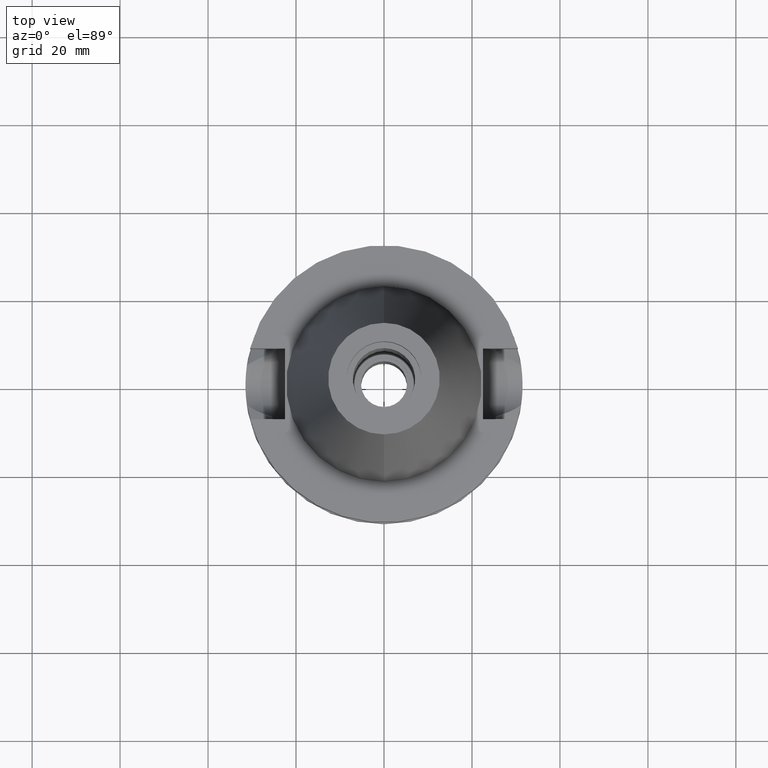
[diagram: clean part render]
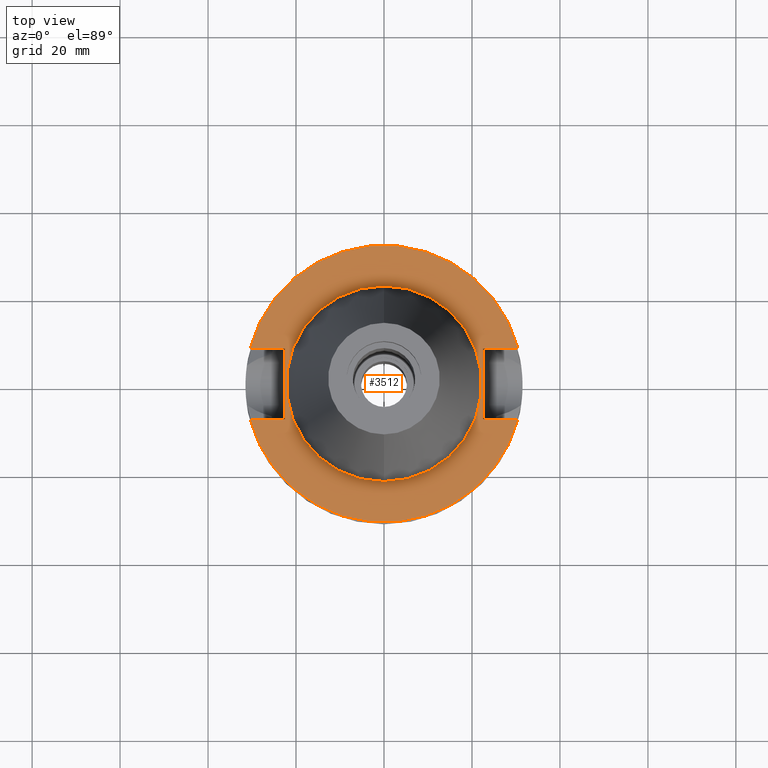
[diagram: same view with one face highlighted and labeled with its STEP entity id]
A machine part, top view. The second image highlights one B-rep face of the part: STEP entity #3512.
In plain terms, the highlighted planar face has unit normal (0, 0, -1).
Its self-contained STEP definition (entity closure, byte-faithful):
#2 = ORIENTED_EDGE ( 'NONE', *, *, #743, .F. ) ;
#65 = CARTESIAN_POINT ( 'NONE',  ( 22.50000000000000000, -8.050000000000000711, -2.000000000000000000 ) ) ;
#69 = DIRECTION ( 'NONE',  ( 0.0000000000000000000, 0.0000000000000000000, 1.000000000000000000 ) ) ;
#188 = AXIS2_PLACEMENT_3D ( 'NONE', #344, #69, #2310 ) ;
#210 = EDGE_CURVE ( 'NONE', #905, #3182, #1142, .T. ) ;
#231 = VERTEX_POINT ( 'NONE', #603 ) ;
#344 = CARTESIAN_POINT ( 'NONE',  ( 0.0000000000000000000, 2.107249747292999862E-14, -2.000000000000000000 ) ) ;
#348 = CARTESIAN_POINT ( 'NONE',  ( 30.45402272279000044, -8.050000000000000711, -2.000000000000000000 ) ) ;
#362 = CARTESIAN_POINT ( 'NONE',  ( -22.50000000000000000, -8.050000000000000711, -2.000000000000000000 ) ) ;
#407 = EDGE_CURVE ( 'NONE', #1294, #231, #1232, .T. ) ;
#484 = FACE_BOUND ( 'NONE', #2856, .T. ) ;
#575 = ORIENTED_EDGE ( 'NONE', *, *, #210, .F. ) ;
#603 = CARTESIAN_POINT ( 'NONE',  ( -22.50000000000000000, 8.050000000000000711, -2.000000000000000000 ) ) ;
#732 = CARTESIAN_POINT ( 'NONE',  ( 22.50000000000000000, 8.050000000000000711, -2.000000000000000000 ) ) ;
#743 = EDGE_CURVE ( 'NONE', #1278, #905, #3250, .T. ) ;
#753 = ORIENTED_EDGE ( 'NONE', *, *, #764, .T. ) ;
#762 = FACE_OUTER_BOUND ( 'NONE', #1842, .T. ) ;
#764 = EDGE_CURVE ( 'NONE', #1278, #1198, #1413, .T. ) ;
#799 = CARTESIAN_POINT ( 'NONE',  ( 0.0000000000000000000, 22.22500000000000142, -2.000000000000000000 ) ) ;
#835 = VECTOR ( 'NONE', #2881, 1000.000000000000000 ) ;
#876 = CARTESIAN_POINT ( 'NONE',  ( 22.50000000000000000, 8.050000000000000711, -2.000000000000000000 ) ) ;
#905 = VERTEX_POINT ( 'NONE', #65 ) ;
#1057 = DIRECTION ( 'NONE',  ( 0.0000000000000000000, 0.0000000000000000000, -1.000000000000000000 ) ) ;
#1061 = ORIENTED_EDGE ( 'NONE', *, *, #2451, .F. ) ;
#1110 = CARTESIAN_POINT ( 'NONE',  ( 22.50000000000000000, 8.050000000000000711, -2.000000000000000000 ) ) ;
#1117 = DIRECTION ( 'NONE',  ( -1.000000000000000000, 3.550916904668000126E-14, 0.0000000000000000000 ) ) ;
#1142 = LINE ( 'NONE', #1439, #1950 ) ;
#1198 = VERTEX_POINT ( 'NONE', #3316 ) ;
#1232 = LINE ( 'NONE', #362, #3383 ) ;
#1243 = AXIS2_PLACEMENT_3D ( 'NONE', #2253, #3415, #3377 ) ;
#1259 = ORIENTED_EDGE ( 'NONE', *, *, #407, .F. ) ;
#1278 = VERTEX_POINT ( 'NONE', #1110 ) ;
#1294 = VERTEX_POINT ( 'NONE', #2288 ) ;
#1296 = DIRECTION ( 'NONE',  ( -1.000000000000000000, -3.550916904668000126E-14, 0.0000000000000000000 ) ) ;
#1303 = EDGE_CURVE ( 'NONE', #3450, #1198, #2137, .T. ) ;
#1330 = ORIENTED_EDGE ( 'NONE', *, *, #1303, .F. ) ;
#1339 = PLANE ( 'NONE',  #3014 ) ;
#1394 = CARTESIAN_POINT ( 'NONE',  ( -22.50000000000000000, -8.050000000000000711, -2.000000000000000000 ) ) ;
#1413 = LINE ( 'NONE', #876, #835 ) ;
#1439 = CARTESIAN_POINT ( 'NONE',  ( 22.50000000000000000, -8.050000000000000711, -2.000000000000000000 ) ) ;
#1584 = CARTESIAN_POINT ( 'NONE',  ( -30.45402272279000044, 8.050000000000000711, -2.000000000000000000 ) ) ;
#1588 = DIRECTION ( 'NONE',  ( 0.0000000000000000000, -1.000000000000000000, 0.0000000000000000000 ) ) ;
#1645 = EDGE_CURVE ( 'NONE', #231, #3450, #2414, .T. ) ;
#1650 = DIRECTION ( 'NONE',  ( 0.0000000000000000000, -1.000000000000000000, 0.0000000000000000000 ) ) ;
#1735 = DIRECTION ( 'NONE',  ( 0.0000000000000000000, 0.0000000000000000000, 1.000000000000000000 ) ) ;
#1842 = EDGE_LOOP ( 'NONE', ( #3150, #2393, #575, #2, #753, #1330, #3413, #1259 ) ) ;
#1858 = VERTEX_POINT ( 'NONE', #799 ) ;
#1950 = VECTOR ( 'NONE', #3105, 1000.000000000000000 ) ;
#1962 = AXIS2_PLACEMENT_3D ( 'NONE', #3075, #3096, #2568 ) ;
#2045 = DIRECTION ( 'NONE',  ( 0.0000000000000000000, 1.000000000000000000, 0.0000000000000000000 ) ) ;
#2137 = CIRCLE ( 'NONE', #1962, 31.50000000000000000 ) ;
#2176 = CARTESIAN_POINT ( 'NONE',  ( -22.50000000000000000, 8.050000000000000711, -2.000000000000000000 ) ) ;
#2179 = CARTESIAN_POINT ( 'NONE',  ( -30.45402272279000044, -8.050000000000000711, -2.000000000000000000 ) ) ;
#2240 = CIRCLE ( 'NONE', #188, 22.22500000000000142 ) ;
#2253 = CARTESIAN_POINT ( 'NONE',  ( 0.0000000000000000000, 2.107249747292999862E-14, -2.000000000000000000 ) ) ;
#2288 = CARTESIAN_POINT ( 'NONE',  ( -22.50000000000000000, -8.050000000000000711, -2.000000000000000000 ) ) ;
#2310 = DIRECTION ( 'NONE',  ( 0.0000000000000000000, -1.000000000000000000, 0.0000000000000000000 ) ) ;
#2325 = ORIENTED_EDGE ( 'NONE', *, *, #2979, .F. ) ;
#2346 = VECTOR ( 'NONE', #1296, 1000.000000000000000 ) ;
#2355 = CIRCLE ( 'NONE', #1243, 31.50000000000000000 ) ;
#2393 = ORIENTED_EDGE ( 'NONE', *, *, #2765, .F. ) ;
#2414 = LINE ( 'NONE', #2176, #2346 ) ;
#2451 = EDGE_CURVE ( 'NONE', #3468, #1858, #2240, .T. ) ;
#2455 = CARTESIAN_POINT ( 'NONE',  ( 0.0000000000000000000, 1.200153863163999924E-14, -2.000000000000000000 ) ) ;
#2525 = AXIS2_PLACEMENT_3D ( 'NONE', #2833, #1735, #2045 ) ;
#2568 = DIRECTION ( 'NONE',  ( 0.0000000000000000000, 1.000000000000000000, 0.0000000000000000000 ) ) ;
#2695 = VERTEX_POINT ( 'NONE', #2179 ) ;
#2765 = EDGE_CURVE ( 'NONE', #3182, #2695, #2355, .T. ) ;
#2833 = CARTESIAN_POINT ( 'NONE',  ( 0.0000000000000000000, 2.107249747292999862E-14, -2.000000000000000000 ) ) ;
#2856 = EDGE_LOOP ( 'NONE', ( #2325, #1061 ) ) ;
#2881 = DIRECTION ( 'NONE',  ( 1.000000000000000000, -3.506251283225999947E-14, 0.0000000000000000000 ) ) ;
#2979 = EDGE_CURVE ( 'NONE', #1858, #3468, #3172, .T. ) ;
#3011 = VECTOR ( 'NONE', #1117, 1000.000000000000000 ) ;
#3014 = AXIS2_PLACEMENT_3D ( 'NONE', #2455, #1057, #1650 ) ;
#3046 = LINE ( 'NONE', #1394, #3011 ) ;
#3075 = CARTESIAN_POINT ( 'NONE',  ( 0.0000000000000000000, 2.107249747292999862E-14, -2.000000000000000000 ) ) ;
#3096 = DIRECTION ( 'NONE',  ( 0.0000000000000000000, 0.0000000000000000000, -1.000000000000000000 ) ) ;
#3105 = DIRECTION ( 'NONE',  ( 1.000000000000000000, 3.573249715389999860E-14, 0.0000000000000000000 ) ) ;
#3150 = ORIENTED_EDGE ( 'NONE', *, *, #3531, .T. ) ;
#3172 = CIRCLE ( 'NONE', #2525, 22.22500000000000142 ) ;
#3182 = VERTEX_POINT ( 'NONE', #348 ) ;
#3194 = DIRECTION ( 'NONE',  ( 0.0000000000000000000, 1.000000000000000000, 0.0000000000000000000 ) ) ;
#3250 = LINE ( 'NONE', #732, #3483 ) ;
#3316 = CARTESIAN_POINT ( 'NONE',  ( 30.45402272279000044, 8.050000000000000711, -2.000000000000000000 ) ) ;
#3377 = DIRECTION ( 'NONE',  ( 0.0000000000000000000, -1.000000000000000000, 0.0000000000000000000 ) ) ;
#3383 = VECTOR ( 'NONE', #3194, 1000.000000000000000 ) ;
#3413 = ORIENTED_EDGE ( 'NONE', *, *, #1645, .F. ) ;
#3415 = DIRECTION ( 'NONE',  ( 0.0000000000000000000, 0.0000000000000000000, -1.000000000000000000 ) ) ;
#3450 = VERTEX_POINT ( 'NONE', #1584 ) ;
#3468 = VERTEX_POINT ( 'NONE', #3577 ) ;
#3483 = VECTOR ( 'NONE', #1588, 1000.000000000000000 ) ;
#3512 = ADVANCED_FACE ( 'NONE', ( #762, #484 ), #1339, .F. ) ;
#3531 = EDGE_CURVE ( 'NONE', #1294, #2695, #3046, .T. ) ;
#3577 = CARTESIAN_POINT ( 'NONE',  ( 0.0000000000000000000, -22.22500000000000142, -2.000000000000000000 ) ) ;